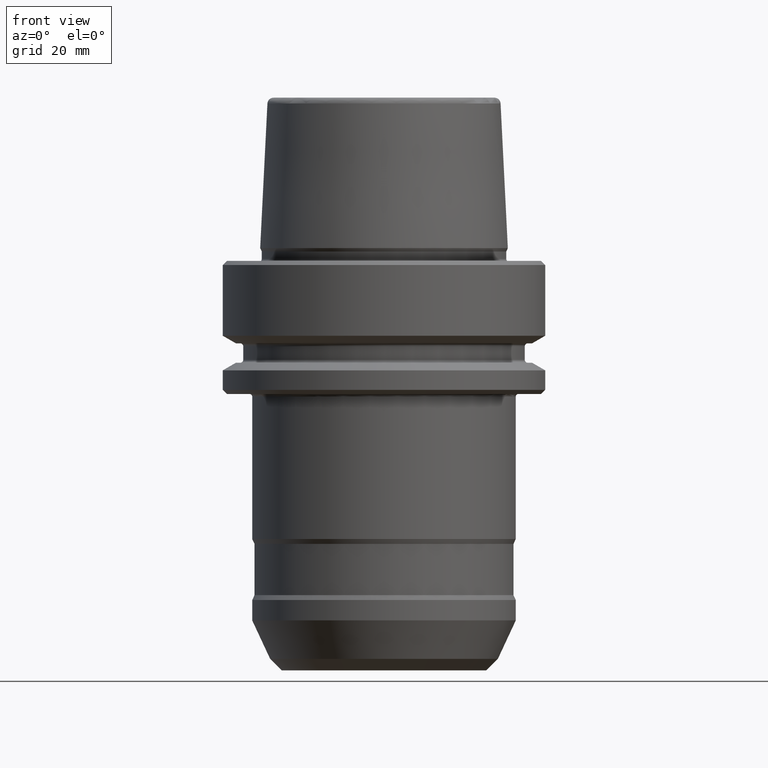
[diagram: clean part render]
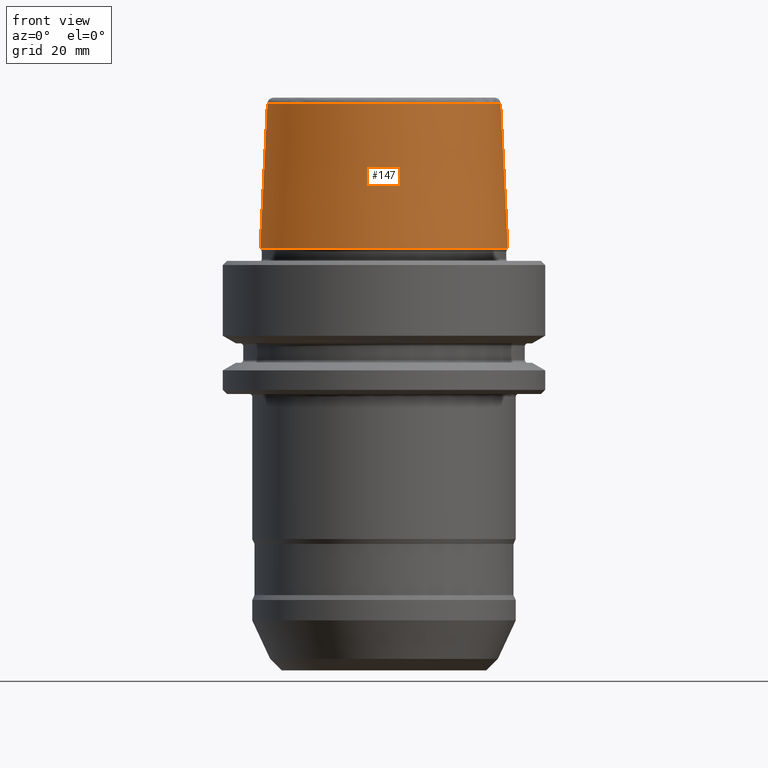
[diagram: same view with one face highlighted and labeled with its STEP entity id]
A machine part, front view. The second image highlights one B-rep face of the part: STEP entity #147.
In plain terms, the highlighted conical surface has half-angle 2.868 deg.
Its self-contained STEP definition (entity closure, byte-faithful):
#40 = ORIENTED_EDGE ( 'NONE', *, *, #1314, .F. ) ;
#124 = CARTESIAN_POINT ( 'NONE',  ( -24.19533121340931800, 0.0000000000000000000, 2.500986405494565200 ) ) ;
#139 = CIRCLE ( 'NONE', #824, 22.77954767978229000 ) ;
#144 = CARTESIAN_POINT ( 'NONE',  ( 24.19533121340931800, 2.963073492481176600E-015, 2.500986405494565200 ) ) ;
#147 = ADVANCED_FACE ( 'NONE', ( #265 ), #1066, .T. ) ;
#160 = CARTESIAN_POINT ( 'NONE',  ( 24.19533121340931800, 2.963073492481176600E-015, 2.500986405494565200 ) ) ;
#165 = ORIENTED_EDGE ( 'NONE', *, *, #320, .T. ) ;
#177 = DIRECTION ( 'NONE',  ( -1.000000000000000000, 0.0000000000000000000, 0.0000000000000000000 ) ) ;
#265 = FACE_OUTER_BOUND ( 'NONE', #476, .T. ) ;
#276 = DIRECTION ( 'NONE',  ( -0.0000000000000000000, -0.0000000000000000000, 1.000000000000000000 ) ) ;
#282 = ORIENTED_EDGE ( 'NONE', *, *, #435, .F. ) ;
#320 = EDGE_CURVE ( 'NONE', #1180, #1192, #630, .T. ) ;
#375 = CARTESIAN_POINT ( 'NONE',  ( 22.77954767978229000, 2.876381753844083400E-015, 30.76004488982331300 ) ) ;
#400 = ORIENTED_EDGE ( 'NONE', *, *, #860, .T. ) ;
#431 = VERTEX_POINT ( 'NONE', #375 ) ;
#435 = EDGE_CURVE ( 'NONE', #431, #1192, #869, .T. ) ;
#458 = LINE ( 'NONE', #124, #1293 ) ;
#476 = EDGE_LOOP ( 'NONE', ( #282, #40, #400, #165 ) ) ;
#591 = VECTOR ( 'NONE', #892, 1000.000000000000200 ) ;
#599 = CARTESIAN_POINT ( 'NONE',  ( 0.0000000000000000000, 0.0000000000000000000, 30.76004488982331300 ) ) ;
#630 = CIRCLE ( 'NONE', #659, 24.19533121340931800 ) ;
#659 = AXIS2_PLACEMENT_3D ( 'NONE', #1248, #276, #729 ) ;
#701 = VERTEX_POINT ( 'NONE', #1321 ) ;
#729 = DIRECTION ( 'NONE',  ( 1.000000000000000000, 0.0000000000000000000, 0.0000000000000000000 ) ) ;
#824 = AXIS2_PLACEMENT_3D ( 'NONE', #599, #1134, #1014 ) ;
#831 = AXIS2_PLACEMENT_3D ( 'NONE', #1140, #1372, #177 ) ;
#860 = EDGE_CURVE ( 'NONE', #701, #1180, #458, .T. ) ;
#869 = LINE ( 'NONE', #144, #591 ) ;
#892 = DIRECTION ( 'NONE',  ( 0.05003740818623230600, 6.127815177289895800E-018, -0.9987473443178731500 ) ) ;
#977 = CARTESIAN_POINT ( 'NONE',  ( -24.19533121340931800, 0.0000000000000000000, 2.500986405494565200 ) ) ;
#1014 = DIRECTION ( 'NONE',  ( 1.000000000000000000, 0.0000000000000000000, 0.0000000000000000000 ) ) ;
#1046 = DIRECTION ( 'NONE',  ( -0.05003740818623230600, 0.0000000000000000000, -0.9987473443178731500 ) ) ;
#1066 = CONICAL_SURFACE ( 'NONE', #831, 24.19533121340931800, 0.05005831187521834300 ) ;
#1134 = DIRECTION ( 'NONE',  ( -0.0000000000000000000, -0.0000000000000000000, 1.000000000000000000 ) ) ;
#1140 = CARTESIAN_POINT ( 'NONE',  ( 0.0000000000000000000, 0.0000000000000000000, 2.500986405494565200 ) ) ;
#1180 = VERTEX_POINT ( 'NONE', #977 ) ;
#1192 = VERTEX_POINT ( 'NONE', #160 ) ;
#1248 = CARTESIAN_POINT ( 'NONE',  ( 0.0000000000000000000, 0.0000000000000000000, 2.500986405494565200 ) ) ;
#1293 = VECTOR ( 'NONE', #1046, 1000.000000000000200 ) ;
#1314 = EDGE_CURVE ( 'NONE', #701, #431, #139, .T. ) ;
#1321 = CARTESIAN_POINT ( 'NONE',  ( -22.77954767978229000, 0.0000000000000000000, 30.76004488982331300 ) ) ;
#1372 = DIRECTION ( 'NONE',  ( 0.0000000000000000000, 0.0000000000000000000, -1.000000000000000000 ) ) ;